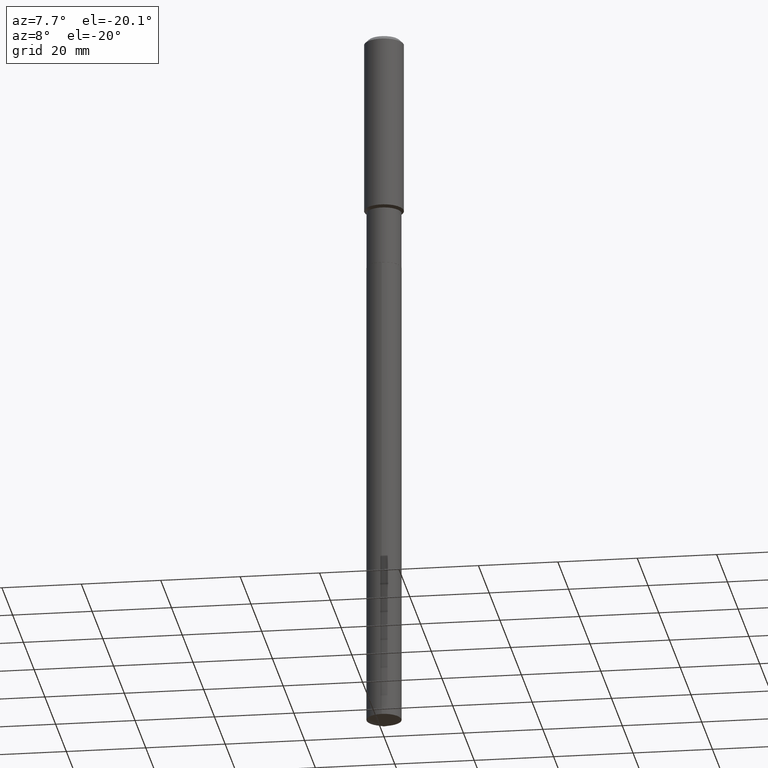
[diagram: clean part render]
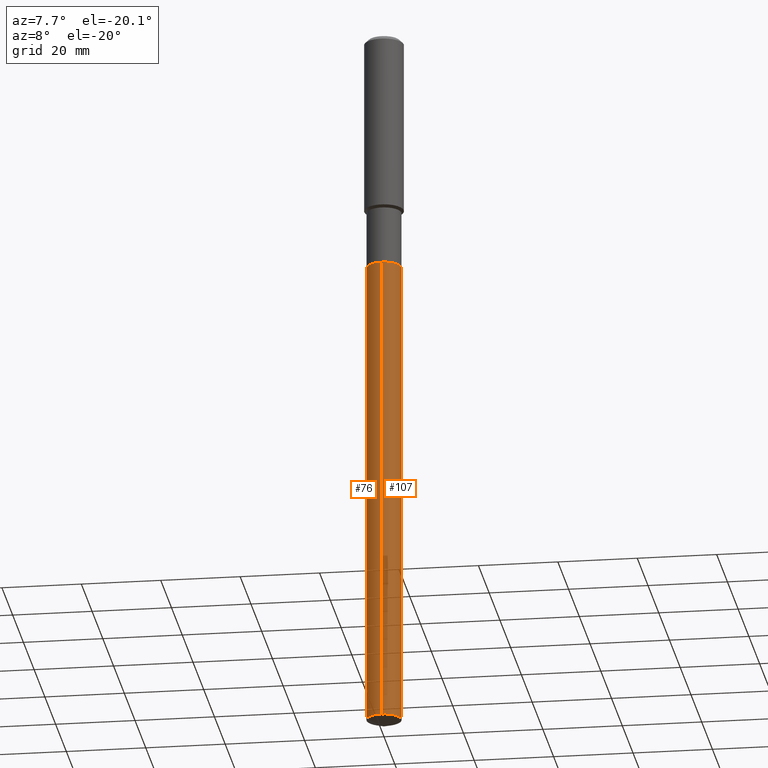
[diagram: same view with one multi-face feature highlighted, each face labeled with its STEP entity id]
A machine part, auxiliary view. The highlighted faces form ONE feature: a constant-radius fillet chain: 2 tangent blend faces with common blend radius 4.4005 mm. The faces share edges in the B-rep.
Their STEP definitions:
[1] entity #107 (Cylinder):
#6 = CARTESIAN_POINT ( 'NONE',  ( -1.209798283909087576E-15, -0.1732500000000082585, -2.369699999999999029 ) ) ;
#18 = VERTEX_POINT ( 'NONE', #145 ) ;
#21 = DIRECTION ( 'NONE',  ( -2.445443168198944148E-29, 3.491518053898597077E-15, 1.000000000000000000 ) ) ;
#22 = ORIENTED_EDGE ( 'NONE', *, *, #236, .F. ) ;
#27 = VECTOR ( 'NONE', #253, 39.37007874015748143 ) ;
#48 = AXIS2_PLACEMENT_3D ( 'NONE', #361, #407, #64 ) ;
#52 = DIRECTION ( 'NONE',  ( -2.445443168198944148E-29, 3.491518053898597077E-15, 1.000000000000000000 ) ) ;
#57 = FACE_OUTER_BOUND ( 'NONE', #420, .T. ) ;
#61 = VERTEX_POINT ( 'NONE', #243 ) ;
#64 = DIRECTION ( 'NONE',  ( -6.982962677686266711E-15, -1.000000000000000000, 6.307296955069006705E-15 ) ) ;
#93 = LINE ( 'NONE', #96, #27 ) ;
#96 = CARTESIAN_POINT ( 'NONE',  ( -1.209798283909087576E-15, -0.1732500000000082585, -2.369699999999999029 ) ) ;
#107 = ADVANCED_FACE ( 'NONE', ( #57 ), #206, .T. ) ;
#124 = ORIENTED_EDGE ( 'NONE', *, *, #219, .T. ) ;
#128 = AXIS2_PLACEMENT_3D ( 'NONE', #364, #21, #331 ) ;
#145 = CARTESIAN_POINT ( 'NONE',  ( 1.231015289704546834E-15, 0.1732499999999751739, -7.096755010099712102 ) ) ;
#163 = VERTEX_POINT ( 'NONE', #6 ) ;
#206 = CYLINDRICAL_SURFACE ( 'NONE', #128, 0.1732499999999999873 ) ;
#219 = EDGE_CURVE ( 'NONE', #18, #61, #432, .T. ) ;
#236 = EDGE_CURVE ( 'NONE', #163, #61, #459, .T. ) ;
#242 = CARTESIAN_POINT ( 'NONE',  ( 5.795027430016917291E-29, -8.273763328656601391E-15, -2.369699999999999473 ) ) ;
#243 = CARTESIAN_POINT ( 'NONE',  ( 1.231015289704547623E-15, 0.1732499999999917162, -2.369699999999999918 ) ) ;
#253 = DIRECTION ( 'NONE',  ( -2.445443168198944148E-29, 3.491518053898597472E-15, 1.000000000000000000 ) ) ;
#254 = CARTESIAN_POINT ( 'NONE',  ( 1.231015289704431266E-15, 0.1732499999999917162, -2.369699999999999918 ) ) ;
#256 = EDGE_CURVE ( 'NONE', #290, #18, #265, .T. ) ;
#265 = CIRCLE ( 'NONE', #48, 0.1732499999999999873 ) ;
#284 = CARTESIAN_POINT ( 'NONE',  ( -1.209798283908971811E-15, -0.1732500000000247453, -7.096755010099710326 ) ) ;
#290 = VERTEX_POINT ( 'NONE', #284 ) ;
#309 = VECTOR ( 'NONE', #395, 39.37007874015748143 ) ;
#318 = ORIENTED_EDGE ( 'NONE', *, *, #327, .F. ) ;
#321 = ORIENTED_EDGE ( 'NONE', *, *, #256, .T. ) ;
#327 = EDGE_CURVE ( 'NONE', #290, #163, #93, .T. ) ;
#331 = DIRECTION ( 'NONE',  ( -6.982962677686266711E-15, -1.000000000000000000, 3.153648477534503352E-15 ) ) ;
#361 = CARTESIAN_POINT ( 'NONE',  ( 1.735477181016584818E-28, -2.477836123819155960E-14, -7.096755010099711214 ) ) ;
#364 = CARTESIAN_POINT ( 'NONE',  ( 5.795027430016917291E-29, -8.273763328656601391E-15, -2.369699999999999473 ) ) ;
#395 = DIRECTION ( 'NONE',  ( -2.445443168198944148E-29, 3.491518053898597472E-15, 1.000000000000000000 ) ) ;
#407 = DIRECTION ( 'NONE',  ( -2.445443168198944148E-29, 3.491518053898597077E-15, 1.000000000000000000 ) ) ;
#420 = EDGE_LOOP ( 'NONE', ( #321, #124, #22, #318 ) ) ;
#428 = DIRECTION ( 'NONE',  ( -6.982962677686266711E-15, -1.000000000000000000, 3.153648477534503352E-15 ) ) ;
#432 = LINE ( 'NONE', #254, #309 ) ;
#459 = CIRCLE ( 'NONE', #477, 0.1732499999999999873 ) ;
#477 = AXIS2_PLACEMENT_3D ( 'NONE', #242, #52, #428 ) ;
[2] entity #76 (Cylinder):
#6 = CARTESIAN_POINT ( 'NONE',  ( -1.209798283909087576E-15, -0.1732500000000082585, -2.369699999999999029 ) ) ;
#9 = ORIENTED_EDGE ( 'NONE', *, *, #451, .F. ) ;
#15 = DIRECTION ( 'NONE',  ( -2.445443168198944148E-29, 3.491518053898597077E-15, 1.000000000000000000 ) ) ;
#18 = VERTEX_POINT ( 'NONE', #145 ) ;
#27 = VECTOR ( 'NONE', #253, 39.37007874015748143 ) ;
#49 = CIRCLE ( 'NONE', #358, 0.1732499999999999873 ) ;
#61 = VERTEX_POINT ( 'NONE', #243 ) ;
#76 = ADVANCED_FACE ( 'NONE', ( #203 ), #369, .T. ) ;
#93 = LINE ( 'NONE', #96, #27 ) ;
#96 = CARTESIAN_POINT ( 'NONE',  ( -1.209798283909087576E-15, -0.1732500000000082585, -2.369699999999999029 ) ) ;
#145 = CARTESIAN_POINT ( 'NONE',  ( 1.231015289704546834E-15, 0.1732499999999751739, -7.096755010099712102 ) ) ;
#147 = AXIS2_PLACEMENT_3D ( 'NONE', #379, #308, #345 ) ;
#163 = VERTEX_POINT ( 'NONE', #6 ) ;
#203 = FACE_OUTER_BOUND ( 'NONE', #436, .T. ) ;
#219 = EDGE_CURVE ( 'NONE', #18, #61, #432, .T. ) ;
#230 = CIRCLE ( 'NONE', #147, 0.1732499999999999873 ) ;
#243 = CARTESIAN_POINT ( 'NONE',  ( 1.231015289704547623E-15, 0.1732499999999917162, -2.369699999999999918 ) ) ;
#253 = DIRECTION ( 'NONE',  ( -2.445443168198944148E-29, 3.491518053898597472E-15, 1.000000000000000000 ) ) ;
#254 = CARTESIAN_POINT ( 'NONE',  ( 1.231015289704431266E-15, 0.1732499999999917162, -2.369699999999999918 ) ) ;
#282 = ORIENTED_EDGE ( 'NONE', *, *, #327, .T. ) ;
#284 = CARTESIAN_POINT ( 'NONE',  ( -1.209798283908971811E-15, -0.1732500000000247453, -7.096755010099710326 ) ) ;
#286 = ORIENTED_EDGE ( 'NONE', *, *, #371, .T. ) ;
#290 = VERTEX_POINT ( 'NONE', #284 ) ;
#300 = ORIENTED_EDGE ( 'NONE', *, *, #219, .F. ) ;
#308 = DIRECTION ( 'NONE',  ( -2.445443168198944148E-29, 3.491518053898597077E-15, 1.000000000000000000 ) ) ;
#309 = VECTOR ( 'NONE', #395, 39.37007874015748143 ) ;
#327 = EDGE_CURVE ( 'NONE', #290, #163, #93, .T. ) ;
#335 = AXIS2_PLACEMENT_3D ( 'NONE', #388, #15, #357 ) ;
#341 = CARTESIAN_POINT ( 'NONE',  ( 5.795027430016917291E-29, -8.273763328656601391E-15, -2.369699999999999473 ) ) ;
#345 = DIRECTION ( 'NONE',  ( -6.982962677686266711E-15, -1.000000000000000000, 6.307296955069006705E-15 ) ) ;
#357 = DIRECTION ( 'NONE',  ( -6.982962677686266711E-15, -1.000000000000000000, 3.153648477534503352E-15 ) ) ;
#358 = AXIS2_PLACEMENT_3D ( 'NONE', #341, #375, #416 ) ;
#369 = CYLINDRICAL_SURFACE ( 'NONE', #335, 0.1732499999999999873 ) ;
#371 = EDGE_CURVE ( 'NONE', #18, #290, #230, .T. ) ;
#375 = DIRECTION ( 'NONE',  ( -2.445443168198944148E-29, 3.491518053898597077E-15, 1.000000000000000000 ) ) ;
#379 = CARTESIAN_POINT ( 'NONE',  ( 1.735477181016584818E-28, -2.477836123819155960E-14, -7.096755010099711214 ) ) ;
#388 = CARTESIAN_POINT ( 'NONE',  ( 5.795027430016917291E-29, -8.273763328656601391E-15, -2.369699999999999473 ) ) ;
#395 = DIRECTION ( 'NONE',  ( -2.445443168198944148E-29, 3.491518053898597472E-15, 1.000000000000000000 ) ) ;
#416 = DIRECTION ( 'NONE',  ( -6.982962677686266711E-15, -1.000000000000000000, 3.153648477534503352E-15 ) ) ;
#432 = LINE ( 'NONE', #254, #309 ) ;
#436 = EDGE_LOOP ( 'NONE', ( #300, #286, #282, #9 ) ) ;
#451 = EDGE_CURVE ( 'NONE', #61, #163, #49, .T. ) ;